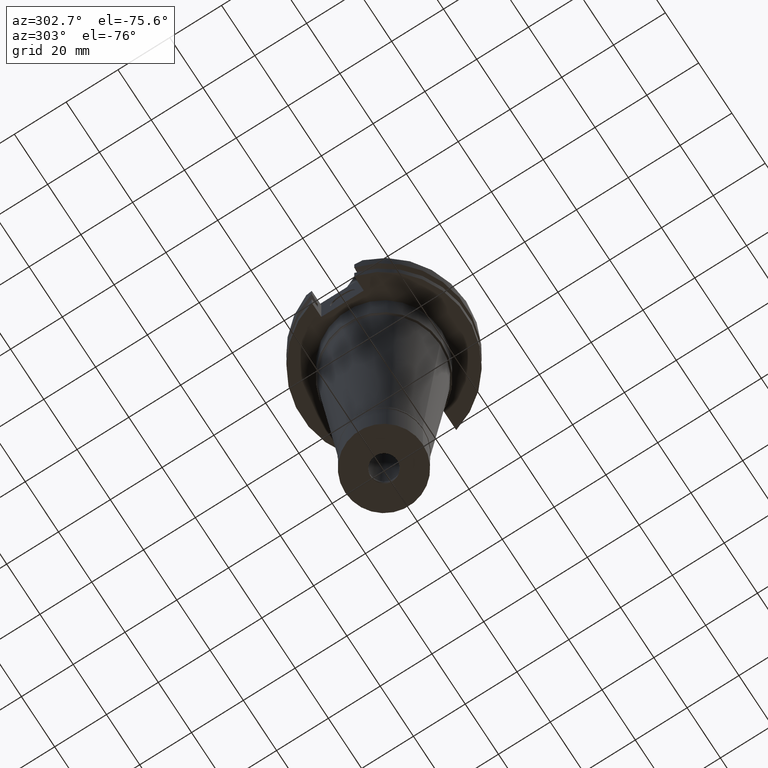
[diagram: clean part render]
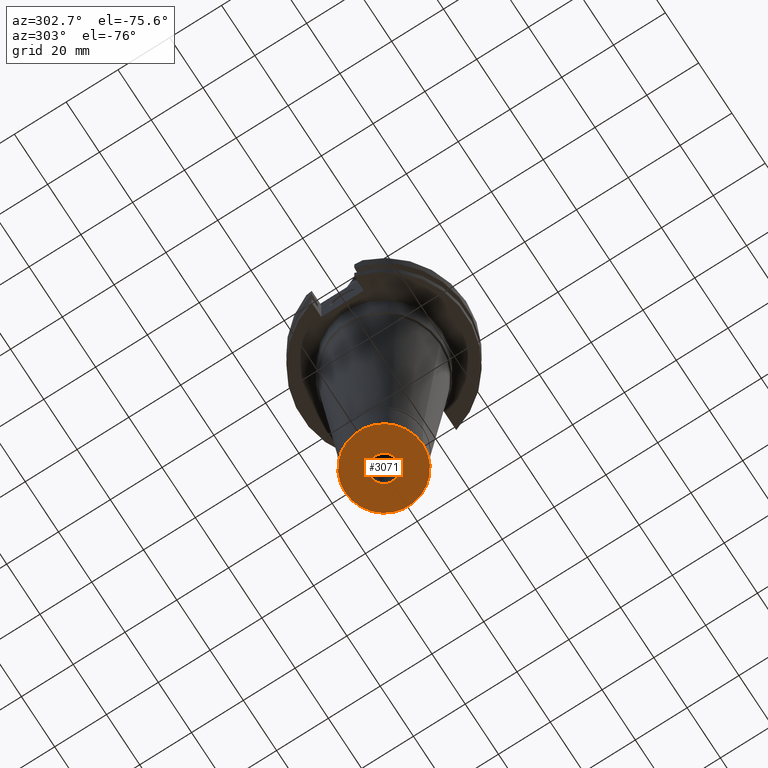
[diagram: same view with one face highlighted and labeled with its STEP entity id]
A machine part, auxiliary view. The second image highlights one B-rep face of the part: STEP entity #3071.
In plain terms, the highlighted planar face has unit normal (0, 0, -1).
Its self-contained STEP definition (entity closure, byte-faithful):
#62 = AXIS2_PLACEMENT_3D ( 'NONE', #465, #3064, #2689 ) ;
#147 = DIRECTION ( 'NONE',  ( 0.0000000000000000000, 0.0000000000000000000, -1.000000000000000000 ) ) ;
#269 = EDGE_CURVE ( 'NONE', #1707, #3094, #3175, .T. ) ;
#366 = EDGE_LOOP ( 'NONE', ( #1185, #453 ) ) ;
#453 = ORIENTED_EDGE ( 'NONE', *, *, #2635, .F. ) ;
#456 = CARTESIAN_POINT ( 'NONE',  ( 0.0000000000000000000, -5.100000000001000622, -22.00000000000000000 ) ) ;
#465 = CARTESIAN_POINT ( 'NONE',  ( 0.0000000000000000000, 0.0000000000000000000, -22.00000000000000000 ) ) ;
#470 = PLANE ( 'NONE',  #1026 ) ;
#496 = CIRCLE ( 'NONE', #1741, 5.100000000001000622 ) ;
#520 = CARTESIAN_POINT ( 'NONE',  ( 0.0000000000000000000, -15.00000000000000000, -22.00000000000000000 ) ) ;
#669 = VERTEX_POINT ( 'NONE', #520 ) ;
#928 = DIRECTION ( 'NONE',  ( 0.0000000000000000000, 0.0000000000000000000, -1.000000000000000000 ) ) ;
#969 = CARTESIAN_POINT ( 'NONE',  ( 0.0000000000000000000, 0.0000000000000000000, -22.00000000000000000 ) ) ;
#1026 = AXIS2_PLACEMENT_3D ( 'NONE', #2225, #928, #3263 ) ;
#1097 = ORIENTED_EDGE ( 'NONE', *, *, #269, .F. ) ;
#1111 = EDGE_CURVE ( 'NONE', #2085, #669, #1905, .T. ) ;
#1130 = DIRECTION ( 'NONE',  ( 0.0000000000000000000, 0.0000000000000000000, -1.000000000000000000 ) ) ;
#1185 = ORIENTED_EDGE ( 'NONE', *, *, #1111, .F. ) ;
#1199 = FACE_OUTER_BOUND ( 'NONE', #366, .T. ) ;
#1371 = CARTESIAN_POINT ( 'NONE',  ( 0.0000000000000000000, 0.0000000000000000000, -22.00000000000000000 ) ) ;
#1635 = CIRCLE ( 'NONE', #2272, 15.00000000000000000 ) ;
#1707 = VERTEX_POINT ( 'NONE', #2182 ) ;
#1741 = AXIS2_PLACEMENT_3D ( 'NONE', #1751, #147, #2015 ) ;
#1751 = CARTESIAN_POINT ( 'NONE',  ( 0.0000000000000000000, 0.0000000000000000000, -22.00000000000000000 ) ) ;
#1809 = DIRECTION ( 'NONE',  ( 0.0000000000000000000, 0.0000000000000000000, 1.000000000000000000 ) ) ;
#1905 = CIRCLE ( 'NONE', #62, 15.00000000000000000 ) ;
#1995 = FACE_BOUND ( 'NONE', #2564, .T. ) ;
#2015 = DIRECTION ( 'NONE',  ( 0.0000000000000000000, -1.000000000000000000, 0.0000000000000000000 ) ) ;
#2085 = VERTEX_POINT ( 'NONE', #3146 ) ;
#2182 = CARTESIAN_POINT ( 'NONE',  ( 0.0000000000000000000, 5.100000000001000622, -22.00000000000000000 ) ) ;
#2225 = CARTESIAN_POINT ( 'NONE',  ( 0.0000000000000000000, 0.0000000000000000000, -22.00000000000000000 ) ) ;
#2272 = AXIS2_PLACEMENT_3D ( 'NONE', #969, #1809, #3364 ) ;
#2561 = EDGE_CURVE ( 'NONE', #3094, #1707, #496, .T. ) ;
#2564 = EDGE_LOOP ( 'NONE', ( #1097, #2997 ) ) ;
#2635 = EDGE_CURVE ( 'NONE', #669, #2085, #1635, .T. ) ;
#2689 = DIRECTION ( 'NONE',  ( 0.0000000000000000000, 1.000000000000000000, 0.0000000000000000000 ) ) ;
#2729 = AXIS2_PLACEMENT_3D ( 'NONE', #1371, #1130, #3219 ) ;
#2997 = ORIENTED_EDGE ( 'NONE', *, *, #2561, .F. ) ;
#3064 = DIRECTION ( 'NONE',  ( 0.0000000000000000000, 0.0000000000000000000, 1.000000000000000000 ) ) ;
#3071 = ADVANCED_FACE ( 'NONE', ( #1199, #1995 ), #470, .T. ) ;
#3094 = VERTEX_POINT ( 'NONE', #456 ) ;
#3146 = CARTESIAN_POINT ( 'NONE',  ( 0.0000000000000000000, 15.00000000000000000, -22.00000000000000000 ) ) ;
#3175 = CIRCLE ( 'NONE', #2729, 5.100000000001000622 ) ;
#3219 = DIRECTION ( 'NONE',  ( 0.0000000000000000000, 1.000000000000000000, 0.0000000000000000000 ) ) ;
#3263 = DIRECTION ( 'NONE',  ( 0.0000000000000000000, -1.000000000000000000, 0.0000000000000000000 ) ) ;
#3364 = DIRECTION ( 'NONE',  ( 0.0000000000000000000, -1.000000000000000000, 0.0000000000000000000 ) ) ;